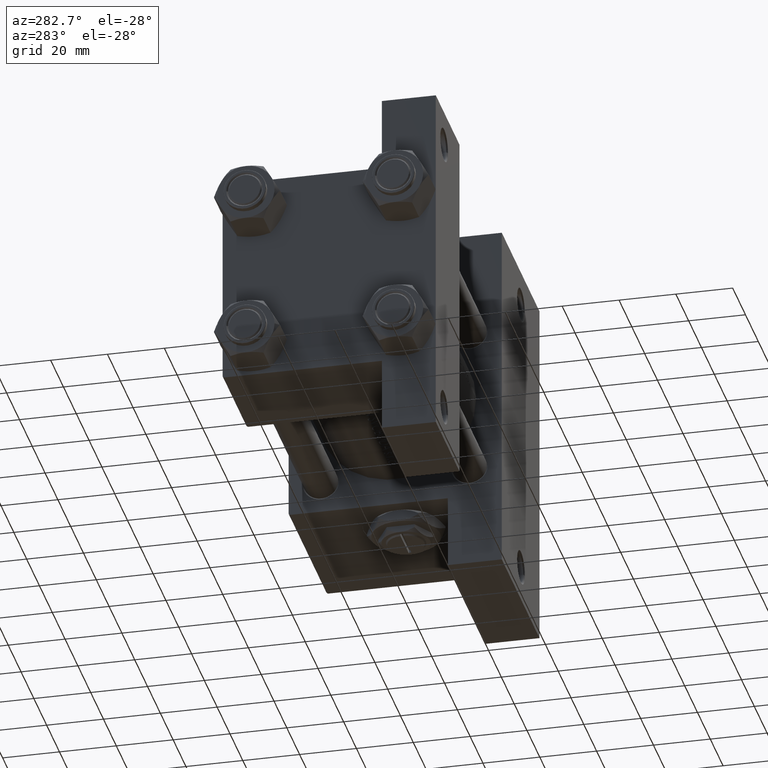
[diagram: clean part render]
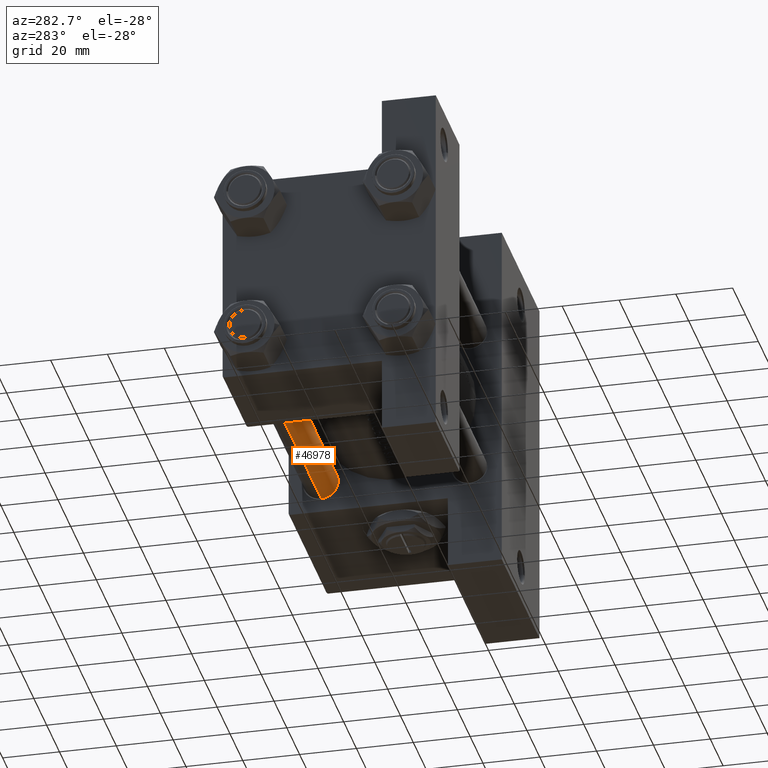
[diagram: same view with one face highlighted and labeled with its STEP entity id]
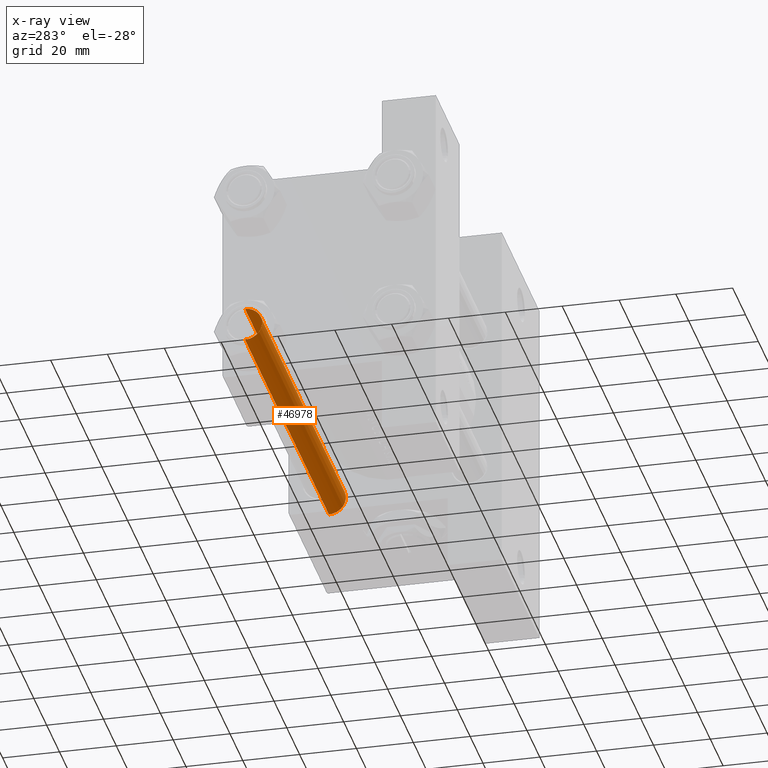
[diagram: x-ray of the same camera — body ghosted, the highlighted face saturated]
A machine part, auxiliary view. The second image highlights one B-rep face of the part: STEP entity #46978.
The next image is the same camera in x-ray: the body ghosted, the highlighted face saturated — about 0% of this face is hidden behind the body in this view.
In plain terms, the highlighted cylindrical surface (edge-blend (fillet) strip) has radius 6 mm, axis along (1, -0, -0).
Its self-contained STEP definition (entity closure, byte-faithful):
#67 = CIRCLE ( 'NONE', #46980, 6.000000000000000888 ) ;
#1688 = DIRECTION ( 'NONE',  ( -1.000000000000000000, 0.000000000000000000, 0.000000000000000000 ) ) ;
#2049 = CARTESIAN_POINT ( 'NONE',  ( 6.000000000000000888, 7.347880794884120722E-16, 131.4999999999999716 ) ) ;
#3559 = CARTESIAN_POINT ( 'NONE',  ( 6.000000000000000888, 7.347880794884120722E-16, 0.5000000000000281997 ) ) ;
#4503 = DIRECTION ( 'NONE',  ( 1.000000000000000000, 0.000000000000000000, 0.000000000000000000 ) ) ;
#6035 = VERTEX_POINT ( 'NONE', #36341 ) ;
#8252 = DIRECTION ( 'NONE',  ( 0.000000000000000000, 0.000000000000000000, -1.000000000000000000 ) ) ;
#9251 = VERTEX_POINT ( 'NONE', #30101 ) ;
#9879 = CARTESIAN_POINT ( 'NONE',  ( -6.000000000000000888, 0.000000000000000000, 132.0000000000000000 ) ) ;
#14152 = EDGE_CURVE ( 'NONE', #22001, #36822, #36739, .T. ) ;
#15255 = ORIENTED_EDGE ( 'NONE', *, *, #22601, .T. ) ;
#17304 = CIRCLE ( 'NONE', #36418, 6.000000000000000888 ) ;
#18548 = CARTESIAN_POINT ( 'NONE',  ( 0.000000000000000000, 0.000000000000000000, 0.5000000000000281997 ) ) ;
#20353 = CARTESIAN_POINT ( 'NONE',  ( 0.000000000000000000, 0.000000000000000000, 132.0000000000000000 ) ) ;
#20406 = CARTESIAN_POINT ( 'NONE',  ( 0.000000000000000000, 0.000000000000000000, 131.4999999999999716 ) ) ;
#22001 = VERTEX_POINT ( 'NONE', #2049 ) ;
#22075 = LINE ( 'NONE', #9879, #38772 ) ;
#22284 = DIRECTION ( 'NONE',  ( -0.000000000000000000, -0.000000000000000000, 1.000000000000000000 ) ) ;
#22601 = EDGE_CURVE ( 'NONE', #6035, #36822, #67, .T. ) ;
#25609 = EDGE_LOOP ( 'NONE', ( #48183, #37180, #43455, #15255 ) ) ;
#29326 = DIRECTION ( 'NONE',  ( -0.000000000000000000, -0.000000000000000000, -1.000000000000000000 ) ) ;
#30101 = CARTESIAN_POINT ( 'NONE',  ( -6.000000000000000888, 0.000000000000000000, 131.4999999999999716 ) ) ;
#31848 = CYLINDRICAL_SURFACE ( 'NONE', #47754, 6.000000000000000888 ) ;
#35332 = FACE_OUTER_BOUND ( 'NONE', #25609, .T. ) ;
#35572 = DIRECTION ( 'NONE',  ( -0.000000000000000000, -0.000000000000000000, -1.000000000000000000 ) ) ;
#36341 = CARTESIAN_POINT ( 'NONE',  ( -6.000000000000000888, 0.000000000000000000, 0.5000000000000281997 ) ) ;
#36418 = AXIS2_PLACEMENT_3D ( 'NONE', #20406, #8252, #4503 ) ;
#36487 = CARTESIAN_POINT ( 'NONE',  ( 6.000000000000000888, 7.347880794884120722E-16, 132.0000000000000000 ) ) ;
#36739 = LINE ( 'NONE', #36487, #41134 ) ;
#36822 = VERTEX_POINT ( 'NONE', #3559 ) ;
#37180 = ORIENTED_EDGE ( 'NONE', *, *, #40817, .T. ) ;
#38772 = VECTOR ( 'NONE', #29326, 1000.000000000000000 ) ;
#39825 = EDGE_CURVE ( 'NONE', #9251, #6035, #22075, .T. ) ;
#40214 = DIRECTION ( 'NONE',  ( -0.000000000000000000, -0.000000000000000000, -1.000000000000000000 ) ) ;
#40817 = EDGE_CURVE ( 'NONE', #22001, #9251, #17304, .T. ) ;
#41134 = VECTOR ( 'NONE', #40214, 1000.000000000000000 ) ;
#41464 = DIRECTION ( 'NONE',  ( 1.000000000000000000, 0.000000000000000000, 0.000000000000000000 ) ) ;
#43455 = ORIENTED_EDGE ( 'NONE', *, *, #39825, .T. ) ;
#46978 = ADVANCED_FACE ( 'NONE', ( #35332 ), #31848, .T. ) ;
#46980 = AXIS2_PLACEMENT_3D ( 'NONE', #18548, #22284, #41464 ) ;
#47754 = AXIS2_PLACEMENT_3D ( 'NONE', #20353, #35572, #1688 ) ;
#48183 = ORIENTED_EDGE ( 'NONE', *, *, #14152, .F. ) ;